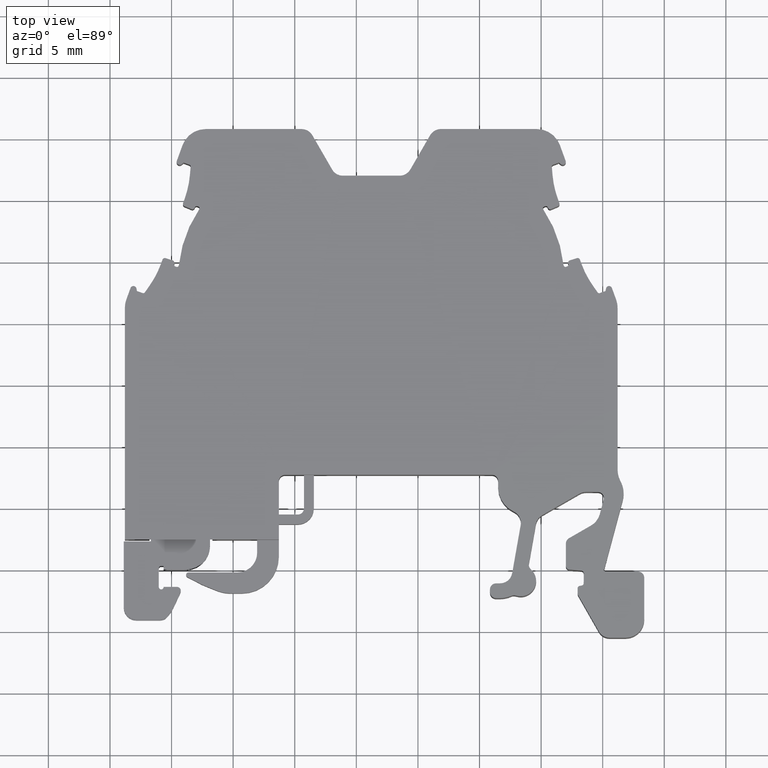
[diagram: clean part render]
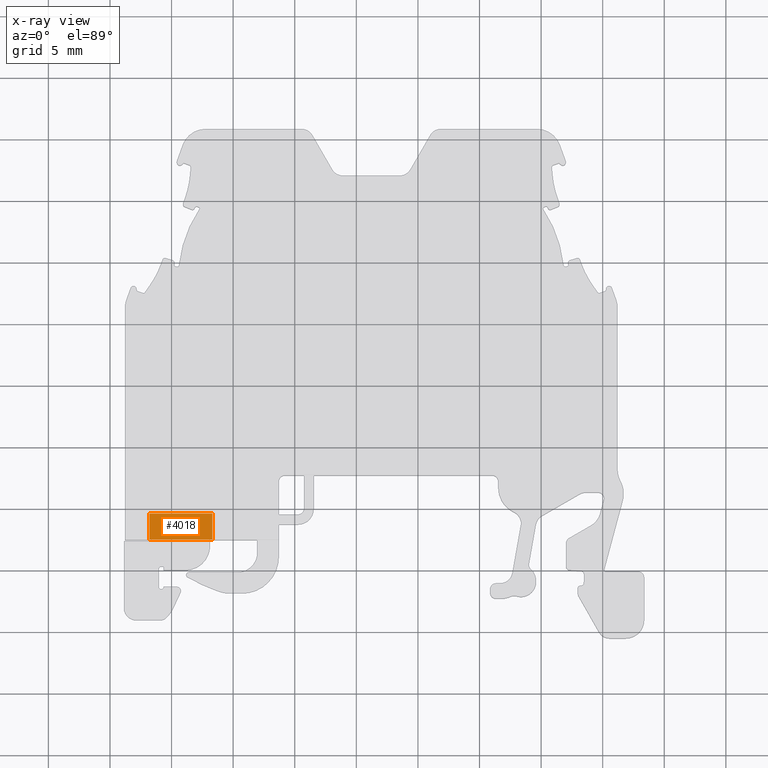
[diagram: x-ray — body ghosted, one internal face saturated and labeled with its STEP entity id]
A machine part, top view, then the same camera in x-ray: the body is ghosted and one INTERNAL B-rep face — a face not visible from any outside direction — is saturated and labeled: STEP entity #4018.
In plain terms, the highlighted planar face has unit normal (-0, -0, -1).
Its self-contained STEP definition (entity closure, byte-faithful):
#190 = EDGE_LOOP ( 'NONE', ( #5032, #5059, #5193, #5228 ) ) ;
#934 = EDGE_CURVE ( 'NONE', #6094, #6134, #7395, .T. ) ;
#1028 = EDGE_CURVE ( 'NONE', #6134, #6075, #8036, .T. ) ;
#1262 = VECTOR ( 'NONE', #7391, 1000.000000000000100 ) ;
#1353 = VECTOR ( 'NONE', #8055, 999.9999999999998900 ) ;
#1521 = VECTOR ( 'NONE', #2231, 1000.000000000000000 ) ;
#1527 = VECTOR ( 'NONE', #2110, 999.9999999999998900 ) ;
#1772 = AXIS2_PLACEMENT_3D ( 'NONE', #6019, #6012, #6024 ) ;
#2103 = LINE ( 'NONE', #2104, #1527 ) ;
#2104 = CARTESIAN_POINT ( 'NONE',  ( 1673.308777688509700, 334.5420207609369600, 2.600000000056959400 ) ) ;
#2110 = DIRECTION ( 'NONE',  ( -0.9999999999999578100, 2.908126431342075500E-007, -0.0000000000000000000 ) ) ;
#2194 = CARTESIAN_POINT ( 'NONE',  ( 1668.208777077945800, 331.6950056927090000, 2.600000000056930100 ) ) ;
#2205 = LINE ( 'NONE', #2194, #1521 ) ;
#2231 = DIRECTION ( 'NONE',  ( -5.799340718649686600E-035, 1.000000000000000000, -3.960244351897831200E-020 ) ) ;
#3362 = CARTESIAN_POINT ( 'NONE',  ( 1668.208777349308100, 334.5420222440815200, 2.600000000056949600 ) ) ;
#3406 = CARTESIAN_POINT ( 'NONE',  ( 1673.308777688509700, 334.5420211317231700, 2.600000000056950500 ) ) ;
#3415 = CARTESIAN_POINT ( 'NONE',  ( 1673.308777383219200, 332.4424520930638200, 2.600000000056934500 ) ) ;
#3427 = CARTESIAN_POINT ( 'NONE',  ( 1668.208777077945800, 332.4425019438679700, 2.600000000056935400 ) ) ;
#3764 = EDGE_CURVE ( 'NONE', #6075, #6038, #2103, .T. ) ;
#3787 = EDGE_CURVE ( 'NONE', #6094, #6038, #2205, .T. ) ;
#4018 = ADVANCED_FACE ( 'NONE', ( #5982 ), #5998, .T. ) ;
#5032 = ORIENTED_EDGE ( 'NONE', *, *, #1028, .F. ) ;
#5059 = ORIENTED_EDGE ( 'NONE', *, *, #934, .F. ) ;
#5193 = ORIENTED_EDGE ( 'NONE', *, *, #3787, .T. ) ;
#5228 = ORIENTED_EDGE ( 'NONE', *, *, #3764, .F. ) ;
#5982 = FACE_OUTER_BOUND ( 'NONE', #190, .T. ) ;
#5998 = PLANE ( 'NONE',  #1772 ) ;
#6012 = DIRECTION ( 'NONE',  ( -1.464389619259357600E-015, -3.960244351897831200E-020, -1.000000000000000000 ) ) ;
#6019 = CARTESIAN_POINT ( 'NONE',  ( 1668.208776860565000, 331.6950056927090000, 2.600000000056930100 ) ) ;
#6024 = DIRECTION ( 'NONE',  ( -1.000000000000000000, 0.0000000000000000000, 1.464389619259357600E-015 ) ) ;
#6038 = VERTEX_POINT ( 'NONE', #3362 ) ;
#6075 = VERTEX_POINT ( 'NONE', #3406 ) ;
#6094 = VERTEX_POINT ( 'NONE', #3427 ) ;
#6134 = VERTEX_POINT ( 'NONE', #3415 ) ;
#7358 = CARTESIAN_POINT ( 'NONE',  ( 1666.209148445389900, 332.4425214895709900, 2.600000000056934100 ) ) ;
#7391 = DIRECTION ( 'NONE',  ( 0.9999999999522278800, -9.774666497559533600E-006, 0.0000000000000000000 ) ) ;
#7395 = LINE ( 'NONE', #7358, #1262 ) ;
#8036 = LINE ( 'NONE', #8070, #1353 ) ;
#8055 = DIRECTION ( 'NONE',  ( 2.908126414355675200E-007, 0.9999999999999578100, -0.0000000000000000000 ) ) ;
#8070 = CARTESIAN_POINT ( 'NONE',  ( 1673.308777688509700, 334.5420207609369600, 2.600000000056959400 ) ) ;